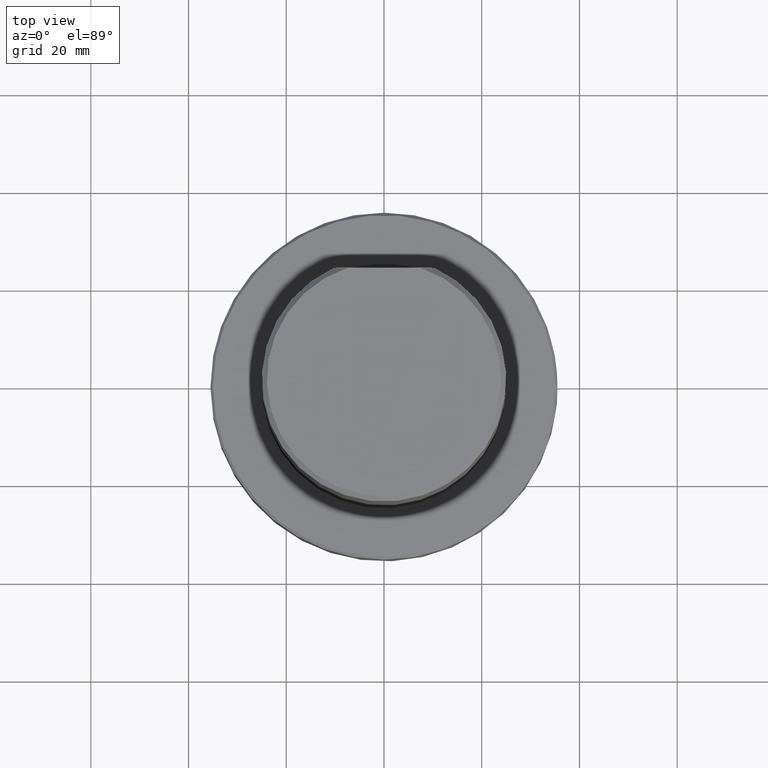
[diagram: clean part render]
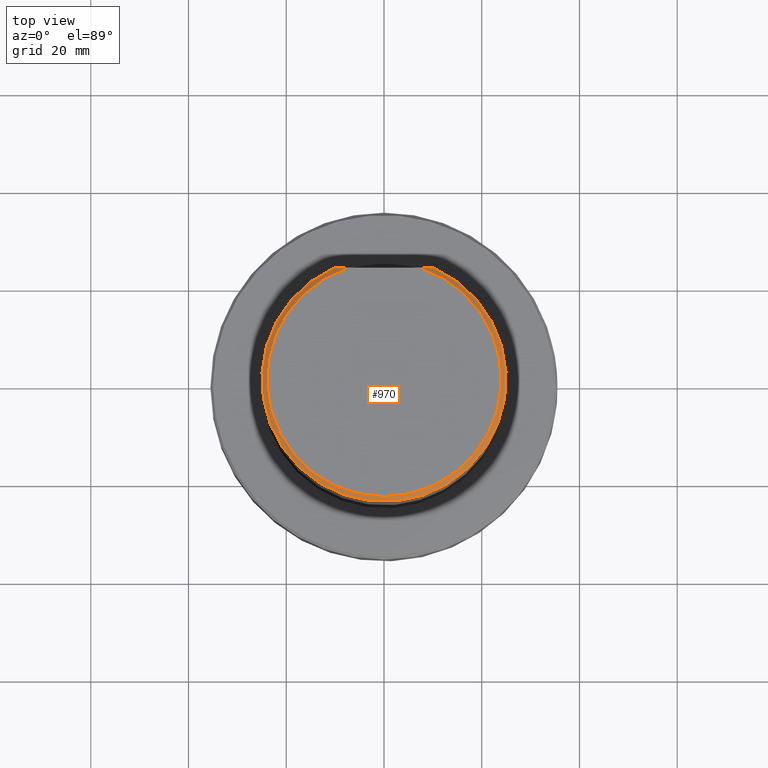
[diagram: same view with one face highlighted and labeled with its STEP entity id]
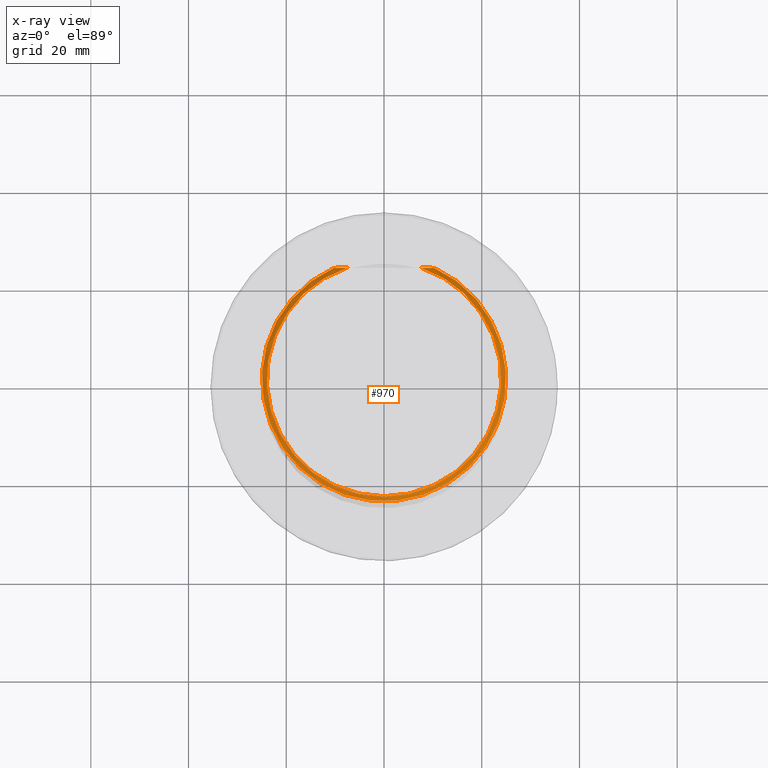
[diagram: x-ray of the same camera — body ghosted, the highlighted face saturated]
A machine part, top view. The second image highlights one B-rep face of the part: STEP entity #970.
The next image is the same camera in x-ray: the body ghosted, the highlighted face saturated — about 0% of this face is hidden behind the body in this view.
In plain terms, the highlighted conical surface has half-angle 45 deg.
Its self-contained STEP definition (entity closure, byte-faithful):
#46=B_SPLINE_CURVE_WITH_KNOTS('',3,(#1482,#1483,#1484,#1485),
 .UNSPECIFIED.,.F.,.F.,(4,4),(0.0500559630837395,0.0529946212295767),
 .UNSPECIFIED.);
#47=B_SPLINE_CURVE_WITH_KNOTS('',3,(#1486,#1487,#1488,#1489),
 .UNSPECIFIED.,.F.,.F.,(4,4),(0.0682230064536769,0.0711501130541585),
 .UNSPECIFIED.);
#88=CONICAL_SURFACE('',#1049,25.,0.785398163397448);
#188=ORIENTED_EDGE('',*,*,#480,.F.);
#189=ORIENTED_EDGE('',*,*,#481,.T.);
#190=ORIENTED_EDGE('',*,*,#478,.T.);
#191=ORIENTED_EDGE('',*,*,#482,.T.);
#478=EDGE_CURVE('',#624,#625,#722,.T.);
#480=EDGE_CURVE('',#626,#627,#723,.T.);
#481=EDGE_CURVE('',#626,#624,#46,.T.);
#482=EDGE_CURVE('',#625,#627,#47,.T.);
#624=VERTEX_POINT('',#1475);
#625=VERTEX_POINT('',#1476);
#626=VERTEX_POINT('',#1480);
#627=VERTEX_POINT('',#1481);
#722=CIRCLE('',#1048,24.);
#723=CIRCLE('',#1050,25.);
#784=EDGE_LOOP('',(#188,#189,#190,#191));
#864=FACE_BOUND('',#784,.T.);
#970=ADVANCED_FACE('',(#864),#88,.T.);
#1048=AXIS2_PLACEMENT_3D('',#1474,#1178,#1179);
#1049=AXIS2_PLACEMENT_3D('',#1478,#1181,#1182);
#1050=AXIS2_PLACEMENT_3D('',#1479,#1183,#1184);
#1178=DIRECTION('',(0.,1.66533453693774E-16,-1.));
#1179=DIRECTION('',(-1.,0.,0.));
#1181=DIRECTION('',(0.,1.66533453693774E-16,-1.));
#1182=DIRECTION('',(-1.,0.,0.));
#1183=DIRECTION('',(0.,1.66533453693774E-16,-1.));
#1184=DIRECTION('',(-1.,0.,0.));
#1474=CARTESIAN_POINT('',(-6.93889390390723E-15,-2.73947531326257E-14,80.));
#1475=CARTESIAN_POINT('',(7.493997598078,22.8,80.));
#1476=CARTESIAN_POINT('',(-7.49399759807802,22.8,80.));
#1478=CARTESIAN_POINT('',(-6.93889390390723E-15,-2.7228219678932E-14,79.));
#1479=CARTESIAN_POINT('',(-6.93889390390723E-15,-2.7228219678932E-14,79.));
#1480=CARTESIAN_POINT('',(10.2547549946354,22.8,79.));
#1481=CARTESIAN_POINT('',(-10.2547549946354,22.8,79.));
#1482=CARTESIAN_POINT('',(10.2547549946354,22.8,79.));
#1483=CARTESIAN_POINT('',(9.35024660946227,22.8,79.3710204752217));
#1484=CARTESIAN_POINT('',(8.43124373140633,22.8,79.7073449886679));
#1485=CARTESIAN_POINT('',(7.49399759807801,22.8,80.));
#1486=CARTESIAN_POINT('',(-7.49399759807802,22.8,80.));
#1487=CARTESIAN_POINT('',(-8.42512110201918,22.8,79.7092567790813));
#1488=CARTESIAN_POINT('',(-9.34811182784294,22.8,79.3718961417207));
#1489=CARTESIAN_POINT('',(-10.2547549946354,22.8,79.));